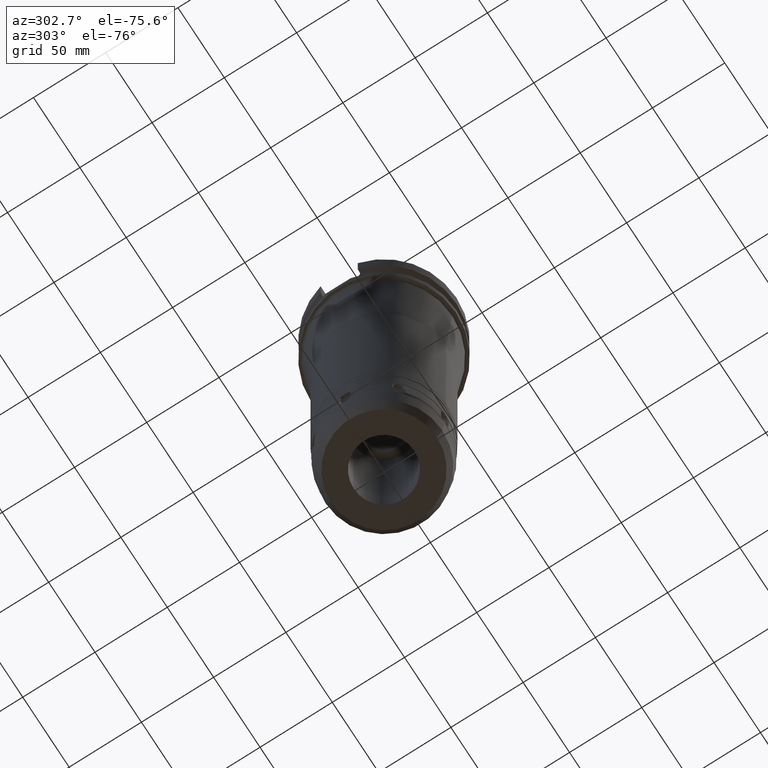
[diagram: clean part render]
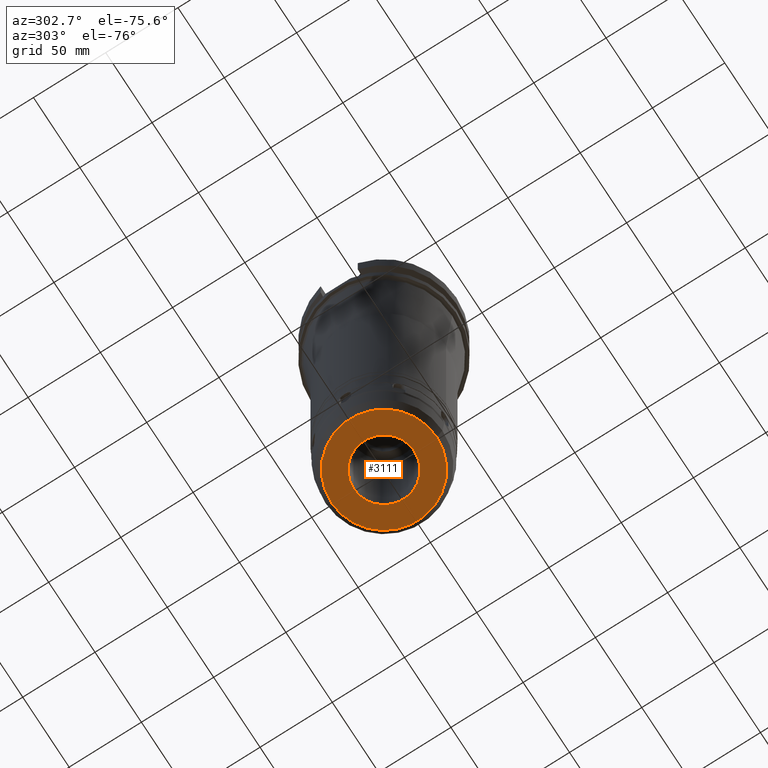
[diagram: same view with one face highlighted and labeled with its STEP entity id]
A machine part, auxiliary view. The second image highlights one B-rep face of the part: STEP entity #3111.
In plain terms, the highlighted planar face has unit normal (0, 0, -1).
Its self-contained STEP definition (entity closure, byte-faithful):
#262=CARTESIAN_POINT('',(0.E0,-2.407349445424E-14,-3.E2));
#263=DIRECTION('',(0.E0,0.E0,1.E0));
#264=DIRECTION('',(0.E0,-1.E0,0.E0));
#265=AXIS2_PLACEMENT_3D('',#262,#263,#264);
#270=CARTESIAN_POINT('',(0.E0,-2.407349445424E-14,-3.E2));
#271=DIRECTION('',(0.E0,0.E0,1.E0));
#272=DIRECTION('',(0.E0,1.E0,0.E0));
#273=AXIS2_PLACEMENT_3D('',#270,#271,#272);
#278=CARTESIAN_POINT('',(0.E0,2.717368782628E-14,-3.E2));
#279=DIRECTION('',(0.E0,0.E0,-1.E0));
#280=DIRECTION('',(0.E0,-1.E0,0.E0));
#281=AXIS2_PLACEMENT_3D('',#278,#279,#280);
#286=CARTESIAN_POINT('',(0.E0,2.717368782628E-14,-3.E2));
#287=DIRECTION('',(0.E0,0.E0,-1.E0));
#288=DIRECTION('',(0.E0,1.E0,0.E0));
#289=AXIS2_PLACEMENT_3D('',#286,#287,#288);
#2527=CARTESIAN_POINT('',(0.E0,2.1E1,-3.E2));
#2528=VERTEX_POINT('',#2527);
#2529=CARTESIAN_POINT('',(0.E0,-2.1E1,-3.E2));
#2530=VERTEX_POINT('',#2529);
#2531=CARTESIAN_POINT('',(0.E0,-3.65E1,-3.E2));
#2532=CARTESIAN_POINT('',(0.E0,3.65E1,-3.E2));
#2533=VERTEX_POINT('',#2531);
#2534=VERTEX_POINT('',#2532);
#3096=CARTESIAN_POINT('',(0.E0,-2.449293598295E-14,-3.E2));
#3097=DIRECTION('',(0.E0,0.E0,-1.E0));
#3098=DIRECTION('',(0.E0,-1.E0,0.E0));
#3099=AXIS2_PLACEMENT_3D('',#3096,#3097,#3098);
#3100=PLANE('',#3099);
#3102=ORIENTED_EDGE('',*,*,#3101,.T.);
#3104=ORIENTED_EDGE('',*,*,#3103,.T.);
#3105=EDGE_LOOP('',(#3102,#3104));
#3106=FACE_OUTER_BOUND('',#3105,.F.);
#3107=ORIENTED_EDGE('',*,*,#3089,.T.);
#3108=ORIENTED_EDGE('',*,*,#3078,.T.);
#3109=EDGE_LOOP('',(#3107,#3108));
#3110=FACE_BOUND('',#3109,.F.);
#266=CIRCLE('',#265,3.65E1);
#274=CIRCLE('',#273,3.65E1);
#282=CIRCLE('',#281,2.1E1);
#290=CIRCLE('',#289,2.1E1);
#3078=EDGE_CURVE('',#2528,#2530,#290,.T.);
#3089=EDGE_CURVE('',#2530,#2528,#282,.T.);
#3101=EDGE_CURVE('',#2533,#2534,#266,.T.);
#3103=EDGE_CURVE('',#2534,#2533,#274,.T.);
#3111=ADVANCED_FACE('',(#3106,#3110),#3100,.T.);